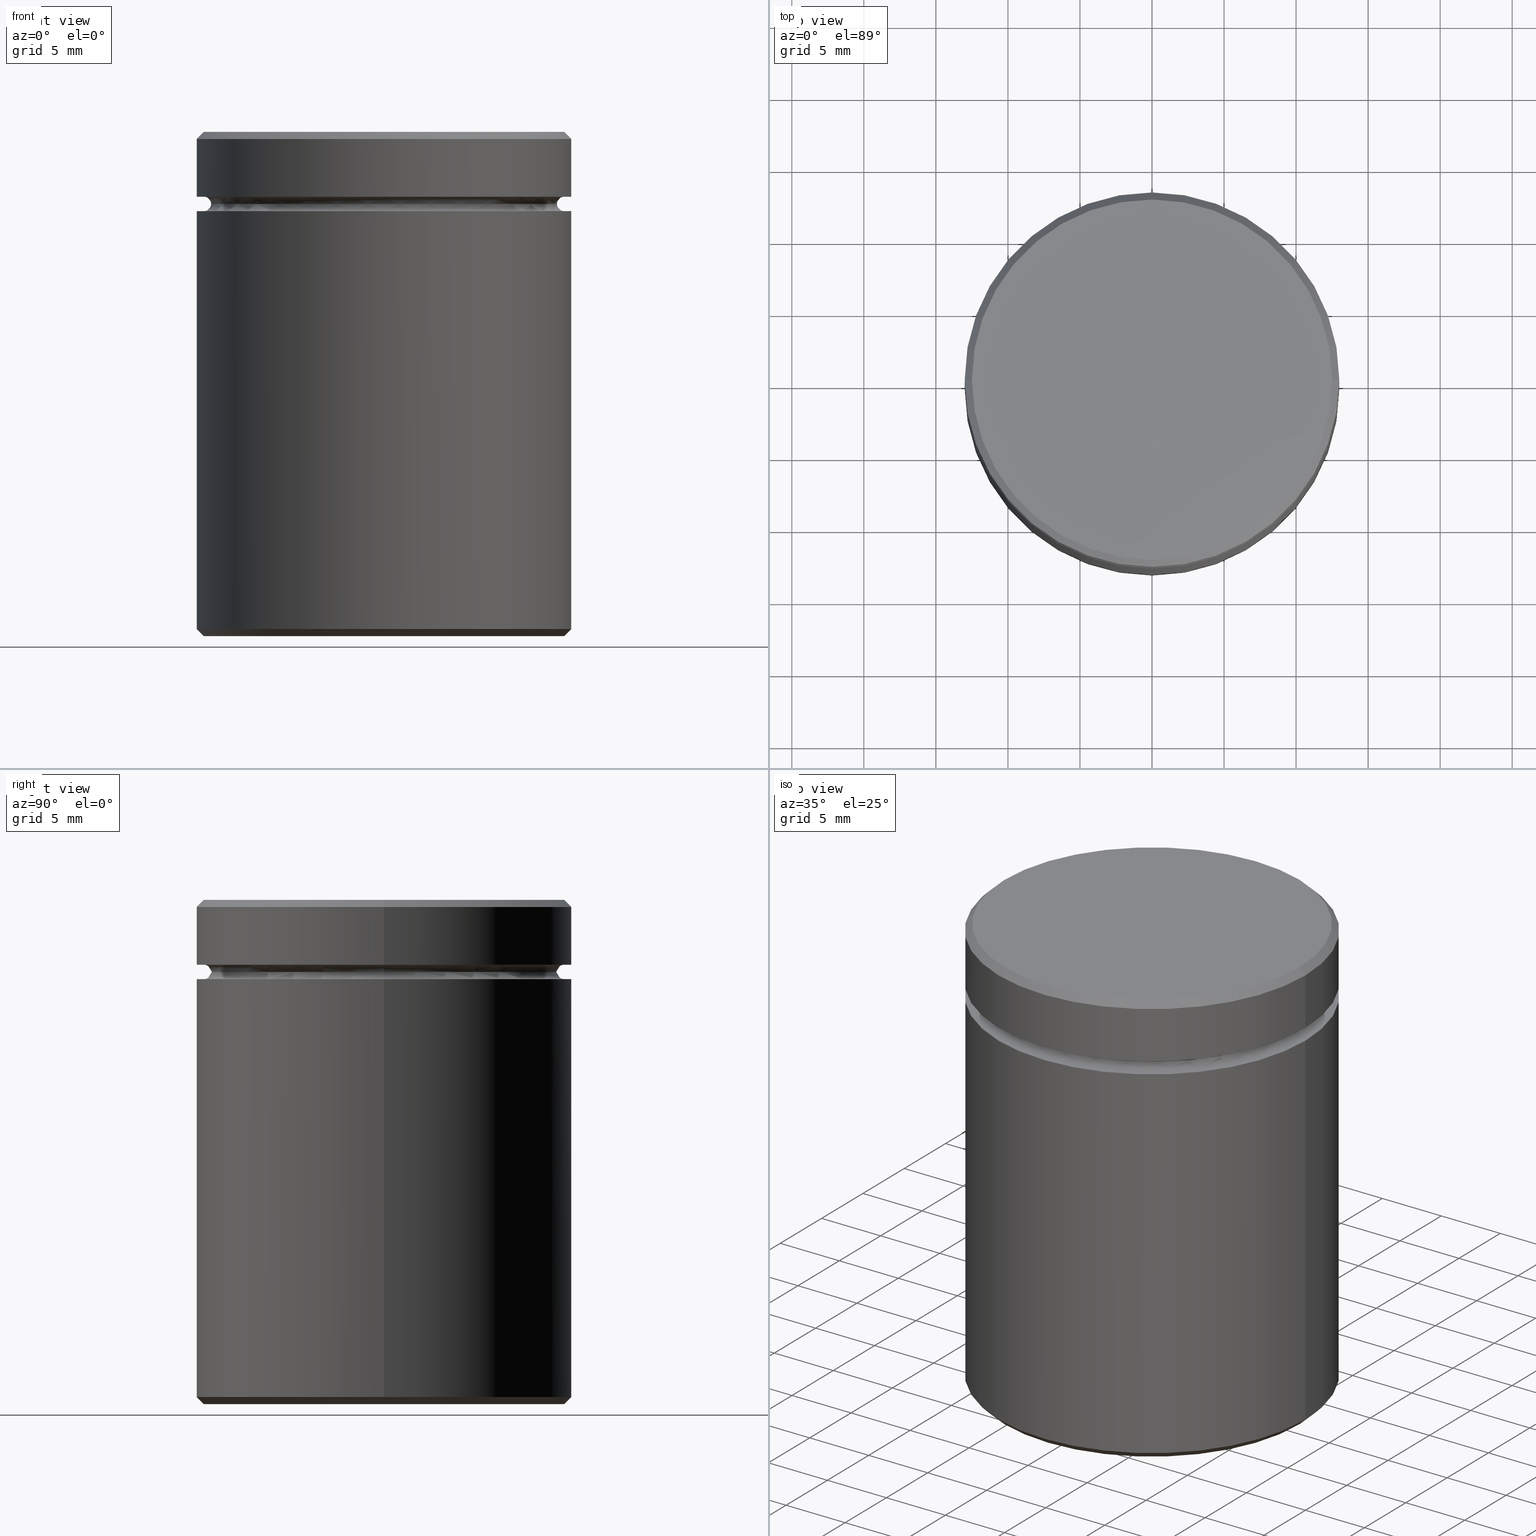
[diagram: canonical four-view strip — front | top / right | iso, engineering-drawing reading convention]
A machine part, canonical four-view strip (front | top / right | iso — engineering-drawing reading convention). The complete STEP part file that produces these views, byte-faithful:
ISO-10303-21;
HEADER;
FILE_DESCRIPTION (( 'STEP AP203' ),
    '1' );
FILE_NAME ('0728.STEP',
    '2024-01-02T19:37:23',
    ( '' ),
    ( '' ),
    'SwSTEP 2.0',
    'SolidWorks 2019',
    '' );
FILE_SCHEMA (( 'CONFIG_CONTROL_DESIGN' ));
ENDSEC;

DATA;
#1 = LINE ( 'NONE', #481, #518 ) ;
#2 = APPROVAL_ROLE ( '' ) ;
#3 = ORIENTED_EDGE ( 'NONE', *, *, #377, .T. ) ;
#4 = DIRECTION ( 'NONE',  ( -0.000000000000000000, -0.000000000000000000, 1.000000000000000000 ) ) ;
#5 = VECTOR ( 'NONE', #11, 1000.000000000000000 ) ;
#6 = LOCAL_TIME ( 20, 37, 23.00000000000000000, #166 ) ;
#7 = CARTESIAN_POINT ( 'NONE',  ( 0.000000000000000000, 0.000000000000000000, -4.500000000000000888 ) ) ;
#8 = CC_DESIGN_DATE_AND_TIME_ASSIGNMENT ( #517, #389, ( #169 ) ) ;
#9 = DIRECTION ( 'NONE',  ( 1.000000000000000000, 0.000000000000000000, 0.000000000000000000 ) ) ;
#10 = VERTEX_POINT ( 'NONE', #47 ) ;
#11 = DIRECTION ( 'NONE',  ( -0.000000000000000000, -0.000000000000000000, -1.000000000000000000 ) ) ;
#12 = DIRECTION ( 'NONE',  ( -0.000000000000000000, -0.000000000000000000, 1.000000000000000000 ) ) ;
#13 = CARTESIAN_POINT ( 'NONE',  ( 8.000000000000000000, 9.797174393178825657E-16, -16.00000000000000355 ) ) ;
#14 = DIRECTION ( 'NONE',  ( -0.000000000000000000, -0.000000000000000000, 1.000000000000000000 ) ) ;
#15 = DIRECTION ( 'NONE',  ( 1.000000000000000000, 0.000000000000000000, 0.000000000000000000 ) ) ;
#16 = CARTESIAN_POINT ( 'NONE',  ( -12.49999999999999112, 0.000000000000000000, 0.000000000000000000 ) ) ;
#17 = TOROIDAL_SURFACE ( 'NONE', #332, 12.50000000000000000, 0.5000000000000000000 ) ;
#18 = VERTEX_POINT ( 'NONE', #179 ) ;
#19 = CC_DESIGN_APPROVAL ( #557, ( #328 ) ) ;
#20 = ORIENTED_EDGE ( 'NONE', *, *, #510, .T. ) ;
#21 = DIRECTION ( 'NONE',  ( -1.000000000000000000, 0.000000000000000000, 0.000000000000000000 ) ) ;
#22 = EDGE_LOOP ( 'NONE', ( #276, #222, #307, #68 ) ) ;
#23 = ADVANCED_FACE ( 'NONE', ( #187 ), #553, .F. ) ;
#24 = CARTESIAN_POINT ( 'NONE',  ( 0.000000000000000000, 0.000000000000000000, -35.00000000000000000 ) ) ;
#25 = ORIENTED_EDGE ( 'NONE', *, *, #86, .T. ) ;
#26 = CIRCLE ( 'NONE', #327, 0.5000000000000004441 ) ;
#27 = CARTESIAN_POINT ( 'NONE',  ( 12.50000000000000000, 0.000000000000000000, -4.999999999999999112 ) ) ;
#28 = CARTESIAN_POINT ( 'NONE',  ( -13.00000000000000000, 1.592040838891559095E-15, 0.000000000000000000 ) ) ;
#29 = CARTESIAN_POINT ( 'NONE',  ( 0.000000000000000000, 0.000000000000000000, -5.500000000000000000 ) ) ;
#30 = CYLINDRICAL_SURFACE ( 'NONE', #281, 13.00000000000000000 ) ;
#31 = CARTESIAN_POINT ( 'NONE',  ( 0.000000000000000000, 0.000000000000000000, -0.5000000000000073275 ) ) ;
#32 = EDGE_CURVE ( 'NONE', #457, #108, #316, .T. ) ;
#33 = PRODUCT_RELATED_PRODUCT_CATEGORY ( 'detail', '', ( #244 ) ) ;
#34 = CIRCLE ( 'NONE', #258, 12.49999999999999112 ) ;
#35 = CARTESIAN_POINT ( 'NONE',  ( 13.00000000000000000, 0.000000000000000000, -5.500000000000000000 ) ) ;
#36 = DIRECTION ( 'NONE',  ( 1.000000000000000000, 0.000000000000000000, 0.000000000000000000 ) ) ;
#37 = ORIENTED_EDGE ( 'NONE', *, *, #216, .F. ) ;
#38 = DIRECTION ( 'NONE',  ( 1.000000000000000000, 0.000000000000000000, 0.000000000000000000 ) ) ;
#39 = CIRCLE ( 'NONE', #266, 13.00000000000000000 ) ;
#40 = CIRCLE ( 'NONE', #504, 8.000000000000000000 ) ;
#41 = ORIENTED_EDGE ( 'NONE', *, *, #312, .T. ) ;
#42 = DATE_TIME_ROLE ( 'classification_date' ) ;
#43 = FACE_OUTER_BOUND ( 'NONE', #443, .T. ) ;
#44 = PERSON_AND_ORGANIZATION_ROLE ( 'creator' ) ;
#45 = ORIENTED_EDGE ( 'NONE', *, *, #61, .T. ) ;
#46 = CARTESIAN_POINT ( 'NONE',  ( 0.000000000000000000, 0.000000000000000000, -34.49999999999999289 ) ) ;
#47 = CARTESIAN_POINT ( 'NONE',  ( 8.000000000000000000, 9.797174393178825657E-16, -35.00000000000000000 ) ) ;
#48 = EDGE_CURVE ( 'NONE', #435, #566, #424, .T. ) ;
#49 = APPROVAL_STATUS ( 'not_yet_approved' ) ;
#50 = ORIENTED_EDGE ( 'NONE', *, *, #333, .F. ) ;
#51 = EDGE_CURVE ( 'NONE', #133, #224, #59, .T. ) ;
#52 = PLANE ( 'NONE',  #110 ) ;
#53 = FACE_OUTER_BOUND ( 'NONE', #255, .T. ) ;
#54 = CARTESIAN_POINT ( 'NONE',  ( 0.000000000000000000, 0.000000000000000000, -4.999999999999999112 ) ) ;
#55 = AXIS2_PLACEMENT_3D ( 'NONE', #7, #303, #314 ) ;
#56 = DATE_AND_TIME ( #184, #147 ) ;
#57 = SECURITY_CLASSIFICATION ( '', '', #97 ) ;
#58 = ORIENTED_EDGE ( 'NONE', *, *, #143, .T. ) ;
#59 = LINE ( 'NONE', #142, #306 ) ;
#60 = ORIENTED_EDGE ( 'NONE', *, *, #421, .F. ) ;
#61 = EDGE_CURVE ( 'NONE', #536, #295, #415, .T. ) ;
#62 = VERTEX_POINT ( 'NONE', #516 ) ;
#63 = CC_DESIGN_DATE_AND_TIME_ASSIGNMENT ( #433, #42, ( #57 ) ) ;
#64 = LINE ( 'NONE', #188, #432 ) ;
#65 = DIRECTION ( 'NONE',  ( 0.000000000000000000, 0.000000000000000000, -1.000000000000000000 ) ) ;
#66 = AXIS2_PLACEMENT_3D ( 'NONE', #242, #317, #545 ) ;
#67 = AXIS2_PLACEMENT_3D ( 'NONE', #347, #366, #505 ) ;
#68 = ORIENTED_EDGE ( 'NONE', *, *, #342, .F. ) ;
#69 = ORIENTED_EDGE ( 'NONE', *, *, #48, .F. ) ;
#70 = CARTESIAN_POINT ( 'NONE',  ( 0.000000000000000000, 0.000000000000000000, -16.00000000000000355 ) ) ;
#71 = DIRECTION ( 'NONE',  ( -1.000000000000000000, 0.000000000000000000, 0.000000000000000000 ) ) ;
#72 = ADVANCED_FACE ( 'NONE', ( #478, #260 ), #513, .T. ) ;
#73 = DIRECTION ( 'NONE',  ( 1.000000000000000000, 0.000000000000000000, 0.000000000000000000 ) ) ;
#74 = ADVANCED_FACE ( 'NONE', ( #228 ), #87, .T. ) ;
#75 = DIRECTION ( 'NONE',  ( 0.000000000000000000, 0.000000000000000000, -1.000000000000000000 ) ) ;
#76 = AXIS2_PLACEMENT_3D ( 'NONE', #24, #149, #21 ) ;
#77 = APPROVAL_PERSON_ORGANIZATION ( #357, #557, #2 ) ;
#78 = DIRECTION ( 'NONE',  ( -0.000000000000000000, -0.000000000000000000, 1.000000000000000000 ) ) ;
#79 = ADVANCED_FACE ( 'NONE', ( #115 ), #360, .T. ) ;
#80 = DIRECTION ( 'NONE',  ( 0.000000000000000000, 0.000000000000000000, -1.000000000000000000 ) ) ;
#81 = PERSON_AND_ORGANIZATION ( #485, #217 ) ;
#82 = VECTOR ( 'NONE', #410, 1000.000000000000000 ) ;
#83 = LOCAL_TIME ( 20, 37, 23.00000000000000000, #223 ) ;
#84 = COORDINATED_UNIVERSAL_TIME_OFFSET ( 1, 0, .AHEAD. ) ;
#85 = APPROVAL ( #49, 'NEUR�EN�' ) ;
#86 = EDGE_CURVE ( 'NONE', #172, #133, #379, .T. ) ;
#87 = CYLINDRICAL_SURFACE ( 'NONE', #178, 13.00000000000000000 ) ;
#88 = SHAPE_DEFINITION_REPRESENTATION ( #494, #382 ) ;
#89 = ORIENTED_EDGE ( 'NONE', *, *, #235, .T. ) ;
#90 = CIRCLE ( 'NONE', #409, 12.49999999999999112 ) ;
#91 = CIRCLE ( 'NONE', #436, 13.00000000000000000 ) ;
#92 = ORIENTED_EDGE ( 'NONE', *, *, #401, .T. ) ;
#93 = ORIENTED_EDGE ( 'NONE', *, *, #438, .F. ) ;
#94 = EDGE_LOOP ( 'NONE', ( #89, #439 ) ) ;
#95 = CARTESIAN_POINT ( 'NONE',  ( 0.000000000000000000, 0.000000000000000000, 0.000000000000000000 ) ) ;
#96 = DIRECTION ( 'NONE',  ( -1.000000000000000000, 0.000000000000000000, 0.000000000000000000 ) ) ;
#97 = SECURITY_CLASSIFICATION_LEVEL ( 'unclassified' ) ;
#98 = ORIENTED_EDGE ( 'NONE', *, *, #479, .F. ) ;
#99 = DIRECTION ( 'NONE',  ( -1.000000000000000000, 0.000000000000000000, 0.000000000000000000 ) ) ;
#100 = VECTOR ( 'NONE', #407, 1000.000000000000000 ) ;
#101 = DIRECTION ( 'NONE',  ( -1.000000000000000000, 0.000000000000000000, 0.000000000000000000 ) ) ;
#102 = CC_DESIGN_SECURITY_CLASSIFICATION ( #57, ( #328 ) ) ;
#103 = EDGE_LOOP ( 'NONE', ( #313, #400, #372, #349 ) ) ;
#104 = DIRECTION ( 'NONE',  ( -0.000000000000000000, -0.000000000000000000, 1.000000000000000000 ) ) ;
#105 = CYLINDRICAL_SURFACE ( 'NONE', #426, 13.00000000000000000 ) ;
#106 = CARTESIAN_POINT ( 'NONE',  ( 12.50000000000000000, 0.000000000000000000, -5.500000000000000000 ) ) ;
#107 = CARTESIAN_POINT ( 'NONE',  ( 13.00000000000000000, 0.000000000000000000, -0.5000000000000073275 ) ) ;
#108 = VERTEX_POINT ( 'NONE', #403 ) ;
#109 = DIRECTION ( 'NONE',  ( -0.000000000000000000, -0.000000000000000000, 1.000000000000000000 ) ) ;
#110 = AXIS2_PLACEMENT_3D ( 'NONE', #183, #315, #395 ) ;
#111 = ORIENTED_EDGE ( 'NONE', *, *, #167, .F. ) ;
#112 = DIRECTION ( 'NONE',  ( 0.000000000000000000, 0.000000000000000000, -1.000000000000000000 ) ) ;
#113 = ADVANCED_FACE ( 'NONE', ( #199 ), #201, .F. ) ;
#114 = LINE ( 'NONE', #16, #386 ) ;
#115 = FACE_OUTER_BOUND ( 'NONE', #301, .T. ) ;
#116 = DIRECTION ( 'NONE',  ( -0.7071067811865487940, 8.659560562354950115E-17, 0.7071067811865463515 ) ) ;
#117 = ORIENTED_EDGE ( 'NONE', *, *, #257, .T. ) ;
#118 = CARTESIAN_POINT ( 'NONE',  ( 12.49999999999999112, 1.530808498934190141E-15, 0.000000000000000000 ) ) ;
#119 = DIRECTION ( 'NONE',  ( -0.000000000000000000, -1.000000000000000000, -0.000000000000000000 ) ) ;
#120 = APPLICATION_CONTEXT ( 'configuration controlled 3d designs of mechanical parts and assemblies' ) ;
#121 = APPROVAL_STATUS ( 'not_yet_approved' ) ;
#122 = CIRCLE ( 'NONE', #550, 8.000000000000000000 ) ;
#123 = APPROVAL ( #121, 'NEUR�EN�' ) ;
#124 = AXIS2_PLACEMENT_3D ( 'NONE', #289, #192, #152 ) ;
#125 = APPLICATION_PROTOCOL_DEFINITION ( 'international standard', 'config_control_design', 1994, #148 ) ;
#126 = FACE_OUTER_BOUND ( 'NONE', #128, .T. ) ;
#127 = APPROVAL_ROLE ( '' ) ;
#128 = EDGE_LOOP ( 'NONE', ( #190, #117, #399, #50 ) ) ;
#129 = VECTOR ( 'NONE', #14, 1000.000000000000000 ) ;
#130 =( NAMED_UNIT ( * ) PLANE_ANGLE_UNIT ( ) SI_UNIT ( $, .RADIAN. ) );
#131 = UNCERTAINTY_MEASURE_WITH_UNIT (LENGTH_MEASURE( 1.000000000000000082E-05 ), #480, 'distance_accuracy_value', 'NONE');
#132 = CARTESIAN_POINT ( 'NONE',  ( 0.000000000000000000, 0.000000000000000000, -0.5000000000000073275 ) ) ;
#133 = VERTEX_POINT ( 'NONE', #213 ) ;
#134 = CARTESIAN_POINT ( 'NONE',  ( -8.000000000000000000, 0.000000000000000000, -35.00000000000000000 ) ) ;
#135 = CALENDAR_DATE ( 2024, 2, 1 ) ;
#136 = EDGE_CURVE ( 'NONE', #295, #196, #394, .T. ) ;
#137 = CARTESIAN_POINT ( 'NONE',  ( 0.000000000000000000, 0.000000000000000000, 0.000000000000000000 ) ) ;
#138 = CIRCLE ( 'NONE', #484, 12.00000000000000000 ) ;
#139 = ORIENTED_EDGE ( 'NONE', *, *, #361, .F. ) ;
#140 = DIRECTION ( 'NONE',  ( 1.000000000000000000, 0.000000000000000000, 0.000000000000000000 ) ) ;
#141 = EDGE_LOOP ( 'NONE', ( #526, #58 ) ) ;
#142 = CARTESIAN_POINT ( 'NONE',  ( -13.00000000000000000, 1.592040838891559095E-15, -34.49999999999999289 ) ) ;
#143 = EDGE_CURVE ( 'NONE', #241, #482, #512, .T. ) ;
#144 = EDGE_CURVE ( 'NONE', #18, #224, #502, .T. ) ;
#145 = VECTOR ( 'NONE', #249, 1000.000000000000000 ) ;
#146 = ADVANCED_FACE ( 'NONE', ( #53 ), #355, .F. ) ;
#147 = LOCAL_TIME ( 20, 37, 23.00000000000000000, #269 ) ;
#148 = APPLICATION_CONTEXT ( 'configuration controlled 3d designs of mechanical parts and assemblies' ) ;
#149 = DIRECTION ( 'NONE',  ( 0.000000000000000000, 0.000000000000000000, -1.000000000000000000 ) ) ;
#150 = DIRECTION ( 'NONE',  ( -1.000000000000000000, 0.000000000000000000, 0.000000000000000000 ) ) ;
#151 = CARTESIAN_POINT ( 'NONE',  ( 0.000000000000000000, 13.00000000000000000, -4.500000000000000888 ) ) ;
#152 = DIRECTION ( 'NONE',  ( -1.000000000000000000, 0.000000000000000000, 0.000000000000000000 ) ) ;
#153 = DIRECTION ( 'NONE',  ( -0.000000000000000000, -0.000000000000000000, 1.000000000000000000 ) ) ;
#154 = DIRECTION ( 'NONE',  ( 1.000000000000000000, 0.000000000000000000, 0.000000000000000000 ) ) ;
#155 = ADVANCED_FACE ( 'NONE', ( #493 ), #539, .F. ) ;
#156 = CC_DESIGN_PERSON_AND_ORGANIZATION_ASSIGNMENT ( #174, #398, ( #57 ) ) ;
#157 = LINE ( 'NONE', #329, #82 ) ;
#158 = CIRCLE ( 'NONE', #387, 8.000000000000000000 ) ;
#159 = VERTEX_POINT ( 'NONE', #292 ) ;
#160 = DIRECTION ( 'NONE',  ( -0.000000000000000000, -0.000000000000000000, 1.000000000000000000 ) ) ;
#161 = DIRECTION ( 'NONE',  ( -1.000000000000000000, 0.000000000000000000, 0.000000000000000000 ) ) ;
#162 = DIRECTION ( 'NONE',  ( -1.000000000000000000, 0.000000000000000000, 0.000000000000000000 ) ) ;
#163 = APPLICATION_PROTOCOL_DEFINITION ( 'international standard', 'config_control_design', 1994, #120 ) ;
#164 = CARTESIAN_POINT ( 'NONE',  ( -13.00000000000000000, 1.592040838891559095E-15, -5.500000000000000000 ) ) ;
#165 = ORIENTED_EDGE ( 'NONE', *, *, #524, .F. ) ;
#166 = COORDINATED_UNIVERSAL_TIME_OFFSET ( 1, 0, .AHEAD. ) ;
#167 = EDGE_CURVE ( 'NONE', #62, #537, #308, .T. ) ;
#168 = CALENDAR_DATE ( 2024, 2, 1 ) ;
#169 = PRODUCT_DEFINITION ( 'NEZN�M�', '', #328, #437 ) ;
#170 = VECTOR ( 'NONE', #300, 1000.000000000000000 ) ;
#171 = DIRECTION ( 'NONE',  ( -1.000000000000000000, 0.000000000000000000, 0.000000000000000000 ) ) ;
#172 = VERTEX_POINT ( 'NONE', #402 ) ;
#173 = VERTEX_POINT ( 'NONE', #320 ) ;
#174 = PERSON_AND_ORGANIZATION ( #485, #217 ) ;
#175 = ORIENTED_EDGE ( 'NONE', *, *, #542, .T. ) ;
#176 = ORIENTED_EDGE ( 'NONE', *, *, #489, .F. ) ;
#177 = EDGE_LOOP ( 'NONE', ( #346, #256, #274, #111 ) ) ;
#178 = AXIS2_PLACEMENT_3D ( 'NONE', #137, #160, #369 ) ;
#179 = CARTESIAN_POINT ( 'NONE',  ( 13.00000000000000000, 0.000000000000000000, -34.49999999999999289 ) ) ;
#180 = AXIS2_PLACEMENT_3D ( 'NONE', #558, #337, #506 ) ;
#181 = PERSON_AND_ORGANIZATION_ROLE ( 'design_supplier' ) ;
#182 = ORIENTED_EDGE ( 'NONE', *, *, #411, .F. ) ;
#183 = CARTESIAN_POINT ( 'NONE',  ( 0.000000000000000000, 13.00000000000000000, -35.00000000000000000 ) ) ;
#184 = CALENDAR_DATE ( 2024, 2, 1 ) ;
#185 = EDGE_LOOP ( 'NONE', ( #25, #560 ) ) ;
#186 = LINE ( 'NONE', #455, #129 ) ;
#187 = FACE_OUTER_BOUND ( 'NONE', #211, .T. ) ;
#188 = CARTESIAN_POINT ( 'NONE',  ( 13.00000000000000000, 0.000000000000000000, 0.000000000000000000 ) ) ;
#189 = AXIS2_PLACEMENT_3D ( 'NONE', #544, #291, #154 ) ;
#190 = ORIENTED_EDGE ( 'NONE', *, *, #144, .T. ) ;
#191 = FACE_BOUND ( 'NONE', #94, .T. ) ;
#192 = DIRECTION ( 'NONE',  ( -0.000000000000000000, -0.000000000000000000, 1.000000000000000000 ) ) ;
#193 = FACE_OUTER_BOUND ( 'NONE', #533, .T. ) ;
#194 = VERTEX_POINT ( 'NONE', #13 ) ;
#195 = ORIENTED_EDGE ( 'NONE', *, *, #342, .T. ) ;
#196 = VERTEX_POINT ( 'NONE', #286 ) ;
#197 = AXIS2_PLACEMENT_3D ( 'NONE', #243, #75, #546 ) ;
#198 = EDGE_LOOP ( 'NONE', ( #225, #219, #567, #270 ) ) ;
#199 = FACE_OUTER_BOUND ( 'NONE', #262, .T. ) ;
#200 = CARTESIAN_POINT ( 'NONE',  ( 12.00000000000000000, 0.000000000000000000, -4.999999999999999112 ) ) ;
#201 = CYLINDRICAL_SURFACE ( 'NONE', #476, 8.000000000000000000 ) ;
#202 = DIRECTION ( 'NONE',  ( 1.000000000000000000, 0.000000000000000000, 0.000000000000000000 ) ) ;
#203 = AXIS2_PLACEMENT_3D ( 'NONE', #309, #488, #353 ) ;
#204 = CARTESIAN_POINT ( 'NONE',  ( 0.000000000000000000, 0.000000000000000000, 0.000000000000000000 ) ) ;
#205 = AXIS2_PLACEMENT_3D ( 'NONE', #498, #153, #507 ) ;
#206 = APPROVAL_PERSON_ORGANIZATION ( #305, #85, #535 ) ;
#207 = ORIENTED_EDGE ( 'NONE', *, *, #333, .T. ) ;
#208 = CARTESIAN_POINT ( 'NONE',  ( 0.000000000000000000, 0.000000000000000000, -5.500000000000000000 ) ) ;
#209 = CARTESIAN_POINT ( 'NONE',  ( 0.000000000000000000, 0.000000000000000000, 0.000000000000000000 ) ) ;
#210 = EDGE_CURVE ( 'NONE', #536, #173, #34, .T. ) ;
#211 = EDGE_LOOP ( 'NONE', ( #165, #69, #441, #325 ) ) ;
#212 = PERSON_AND_ORGANIZATION ( #485, #217 ) ;
#213 = CARTESIAN_POINT ( 'NONE',  ( -12.49999999999999112, 1.561424668912874519E-15, -35.00000000000000000 ) ) ;
#214 = CIRCLE ( 'NONE', #76, 8.000000000000000000 ) ;
#215 = DIRECTION ( 'NONE',  ( -0.000000000000000000, -0.000000000000000000, 1.000000000000000000 ) ) ;
#216 = EDGE_CURVE ( 'NONE', #390, #530, #425, .T. ) ;
#217 = ORGANIZATION ( 'NEUR�EN�', 'NEUR�EN�', '' ) ;
#218 = CC_DESIGN_PERSON_AND_ORGANIZATION_ASSIGNMENT ( #212, #423, ( #169 ) ) ;
#219 = ORIENTED_EDGE ( 'NONE', *, *, #524, .T. ) ;
#220 = CARTESIAN_POINT ( 'NONE',  ( 0.000000000000000000, 0.000000000000000000, -5.500000000000000000 ) ) ;
#221 = DIRECTION ( 'NONE',  ( -0.000000000000000000, -0.000000000000000000, 1.000000000000000000 ) ) ;
#222 = ORIENTED_EDGE ( 'NONE', *, *, #411, .T. ) ;
#223 = COORDINATED_UNIVERSAL_TIME_OFFSET ( 1, 0, .AHEAD. ) ;
#224 = VERTEX_POINT ( 'NONE', #388 ) ;
#225 = ORIENTED_EDGE ( 'NONE', *, *, #472, .F. ) ;
#226 = DIRECTION ( 'NONE',  ( -0.000000000000000000, -0.000000000000000000, 1.000000000000000000 ) ) ;
#227 = AXIS2_PLACEMENT_3D ( 'NONE', #499, #65, #237 ) ;
#228 = FACE_OUTER_BOUND ( 'NONE', #451, .T. ) ;
#229 = DIRECTION ( 'NONE',  ( 1.000000000000000000, 0.000000000000000000, 0.000000000000000000 ) ) ;
#230 = FACE_OUTER_BOUND ( 'NONE', #177, .T. ) ;
#231 = ORIENTED_EDGE ( 'NONE', *, *, #51, .T. ) ;
#232 = FACE_BOUND ( 'NONE', #496, .T. ) ;
#233 = VERTEX_POINT ( 'NONE', #134 ) ;
#234 = ORIENTED_EDGE ( 'NONE', *, *, #326, .T. ) ;
#235 = EDGE_CURVE ( 'NONE', #537, #62, #251, .T. ) ;
#236 = AXIS2_PLACEMENT_3D ( 'NONE', #311, #271, #319 ) ;
#237 = DIRECTION ( 'NONE',  ( -1.000000000000000000, 0.000000000000000000, 0.000000000000000000 ) ) ;
#238 = APPROVAL_PERSON_ORGANIZATION ( #331, #123, #127 ) ;
#239 = CC_DESIGN_PERSON_AND_ORGANIZATION_ASSIGNMENT ( #568, #44, ( #328 ) ) ;
#240 = ORIENTED_EDGE ( 'NONE', *, *, #384, .F. ) ;
#241 = VERTEX_POINT ( 'NONE', #267 ) ;
#242 = CARTESIAN_POINT ( 'NONE',  ( 0.000000000000000000, 0.000000000000000000, 0.000000000000000000 ) ) ;
#243 = CARTESIAN_POINT ( 'NONE',  ( 0.000000000000000000, 0.000000000000000000, -16.00000000000000355 ) ) ;
#244 = PRODUCT ( '0728', '0728', '', ( #559 ) ) ;
#245 = CARTESIAN_POINT ( 'NONE',  ( 0.000000000000000000, 0.000000000000000000, -4.999999999999999112 ) ) ;
#246 = DIRECTION ( 'NONE',  ( -0.000000000000000000, -0.000000000000000000, 1.000000000000000000 ) ) ;
#247 = FACE_OUTER_BOUND ( 'NONE', #547, .T. ) ;
#248 = CLOSED_SHELL ( 'NONE', ( #440, #155, #429, #462, #146, #490, #564, #323, #79, #74, #288, #72, #461, #113, #391, #509, #352, #23, #335 ) ) ;
#249 = DIRECTION ( 'NONE',  ( 0.7071067811865487940, 8.659560562354950115E-17, -0.7071067811865463515 ) ) ;
#250 = LINE ( 'NONE', #28, #100 ) ;
#251 = CIRCLE ( 'NONE', #55, 12.50000000000000000 ) ;
#252 = FACE_OUTER_BOUND ( 'NONE', #103, .T. ) ;
#253 = DIRECTION ( 'NONE',  ( 0.000000000000000000, 0.000000000000000000, -1.000000000000000000 ) ) ;
#254 = DIRECTION ( 'NONE',  ( 0.000000000000000000, -1.000000000000000000, 0.000000000000000000 ) ) ;
#255 = EDGE_LOOP ( 'NONE', ( #139, #234, #20, #345 ) ) ;
#256 = ORIENTED_EDGE ( 'NONE', *, *, #48, .T. ) ;
#257 = EDGE_CURVE ( 'NONE', #224, #390, #430, .T. ) ;
#258 = AXIS2_PLACEMENT_3D ( 'NONE', #406, #4, #38 ) ;
#259 =( GEOMETRIC_REPRESENTATION_CONTEXT ( 3 ) GLOBAL_UNCERTAINTY_ASSIGNED_CONTEXT ( ( #131 ) ) GLOBAL_UNIT_ASSIGNED_CONTEXT ( ( #480, #130, #383 ) ) REPRESENTATION_CONTEXT ( 'NONE', 'WORKASPACE' ) );
#260 = FACE_OUTER_BOUND ( 'NONE', #456, .T. ) ;
#261 = CARTESIAN_POINT ( 'NONE',  ( -12.50000000000000000, 0.000000000000000000, -4.500000000000000888 ) ) ;
#262 = EDGE_LOOP ( 'NONE', ( #453, #176, #92, #404 ) ) ;
#263 = DIRECTION ( 'NONE',  ( 0.000000000000000000, 0.000000000000000000, -1.000000000000000000 ) ) ;
#264 = DIRECTION ( 'NONE',  ( 0.7071067811865487940, 0.000000000000000000, 0.7071067811865463515 ) ) ;
#265 = ORIENTED_EDGE ( 'NONE', *, *, #510, .F. ) ;
#266 = AXIS2_PLACEMENT_3D ( 'NONE', #464, #500, #73 ) ;
#267 = CARTESIAN_POINT ( 'NONE',  ( -12.50000000000000000, 1.530808498934191521E-15, -5.500000000000000000 ) ) ;
#268 = DIRECTION ( 'NONE',  ( 1.000000000000000000, 0.000000000000000000, 0.000000000000000000 ) ) ;
#269 = COORDINATED_UNIVERSAL_TIME_OFFSET ( 1, 0, .AHEAD. ) ;
#270 = ORIENTED_EDGE ( 'NONE', *, *, #373, .F. ) ;
#271 = DIRECTION ( 'NONE',  ( -0.000000000000000000, -0.000000000000000000, 1.000000000000000000 ) ) ;
#272 = APPROVAL_DATE_TIME ( #348, #85 ) ;
#273 = FACE_OUTER_BOUND ( 'NONE', #185, .T. ) ;
#274 = ORIENTED_EDGE ( 'NONE', *, *, #384, .T. ) ;
#275 = CARTESIAN_POINT ( 'NONE',  ( 0.000000000000000000, 0.000000000000000000, 0.000000000000000000 ) ) ;
#276 = ORIENTED_EDGE ( 'NONE', *, *, #32, .T. ) ;
#277 = EDGE_CURVE ( 'NONE', #172, #18, #1, .T. ) ;
#278 = DIRECTION ( 'NONE',  ( -1.000000000000000000, 0.000000000000000000, 0.000000000000000000 ) ) ;
#279 = DIRECTION ( 'NONE',  ( 0.000000000000000000, -0.000000000000000000, 1.000000000000000000 ) ) ;
#280 = TOROIDAL_SURFACE ( 'NONE', #227, 12.50000000000000000, 0.5000000000000000000 ) ;
#281 = AXIS2_PLACEMENT_3D ( 'NONE', #339, #78, #418 ) ;
#282 = ORIENTED_EDGE ( 'NONE', *, *, #489, .T. ) ;
#283 = CARTESIAN_POINT ( 'NONE',  ( 0.000000000000000000, 0.000000000000000000, -4.999999999999999112 ) ) ;
#284 = DIRECTION ( 'NONE',  ( -0.000000000000000000, -0.000000000000000000, 1.000000000000000000 ) ) ;
#285 = CARTESIAN_POINT ( 'NONE',  ( 0.000000000000000000, 0.000000000000000000, -16.00000000000000355 ) ) ;
#286 = CARTESIAN_POINT ( 'NONE',  ( -13.00000000000000000, 1.592040838891559095E-15, -0.5000000000000073275 ) ) ;
#287 = CARTESIAN_POINT ( 'NONE',  ( 0.000000000000000000, 0.000000000000000000, -5.000000000000000888 ) ) ;
#288 = ADVANCED_FACE ( 'NONE', ( #191, #363 ), #548, .T. ) ;
#289 = CARTESIAN_POINT ( 'NONE',  ( 0.000000000000000000, 0.000000000000000000, -34.49999999999999289 ) ) ;
#290 = AXIS2_PLACEMENT_3D ( 'NONE', #204, #381, #427 ) ;
#291 = DIRECTION ( 'NONE',  ( -0.000000000000000000, -0.000000000000000000, 1.000000000000000000 ) ) ;
#292 = CARTESIAN_POINT ( 'NONE',  ( -8.000000000000000000, 0.000000000000000000, -16.00000000000000355 ) ) ;
#293 = AXIS2_PLACEMENT_3D ( 'NONE', #151, #368, #497 ) ;
#294 = CALENDAR_DATE ( 2024, 2, 1 ) ;
#295 = VERTEX_POINT ( 'NONE', #107 ) ;
#296 = DIRECTION ( 'NONE',  ( 0.000000000000000000, 0.000000000000000000, -1.000000000000000000 ) ) ;
#297 = CC_DESIGN_PERSON_AND_ORGANIZATION_ASSIGNMENT ( #302, #181, ( #328 ) ) ;
#298 = APPROVAL_DATE_TIME ( #515, #123 ) ;
#299 = AXIS2_PLACEMENT_3D ( 'NONE', #220, #215, #532 ) ;
#300 = DIRECTION ( 'NONE',  ( -0.000000000000000000, -0.000000000000000000, 1.000000000000000000 ) ) ;
#301 = EDGE_LOOP ( 'NONE', ( #41, #473 ) ) ;
#302 = PERSON_AND_ORGANIZATION ( #485, #217 ) ;
#303 = DIRECTION ( 'NONE',  ( -0.000000000000000000, -0.000000000000000000, 1.000000000000000000 ) ) ;
#304 = FACE_OUTER_BOUND ( 'NONE', #549, .T. ) ;
#305 = PERSON_AND_ORGANIZATION ( #485, #217 ) ;
#306 = VECTOR ( 'NONE', #116, 1000.000000000000000 ) ;
#307 = ORIENTED_EDGE ( 'NONE', *, *, #378, .T. ) ;
#308 = CIRCLE ( 'NONE', #477, 12.50000000000000000 ) ;
#309 = CARTESIAN_POINT ( 'NONE',  ( 0.000000000000000000, 0.000000000000000000, -4.500000000000000888 ) ) ;
#310 = ORIENTED_EDGE ( 'NONE', *, *, #136, .T. ) ;
#311 = CARTESIAN_POINT ( 'NONE',  ( 0.000000000000000000, 0.000000000000000000, 0.000000000000000000 ) ) ;
#312 = EDGE_CURVE ( 'NONE', #173, #536, #491, .T. ) ;
#313 = ORIENTED_EDGE ( 'NONE', *, *, #61, .F. ) ;
#314 = DIRECTION ( 'NONE',  ( -1.000000000000000000, 0.000000000000000000, 0.000000000000000000 ) ) ;
#315 = DIRECTION ( 'NONE',  ( 0.000000000000000000, 0.000000000000000000, -1.000000000000000000 ) ) ;
#316 = CIRCLE ( 'NONE', #203, 13.00000000000000000 ) ;
#317 = DIRECTION ( 'NONE',  ( 0.000000000000000000, -0.000000000000000000, 1.000000000000000000 ) ) ;
#318 = AXIS2_PLACEMENT_3D ( 'NONE', #31, #465, #202 ) ;
#319 = DIRECTION ( 'NONE',  ( 1.000000000000000000, 0.000000000000000000, 0.000000000000000000 ) ) ;
#320 = CARTESIAN_POINT ( 'NONE',  ( -12.49999999999999112, 0.000000000000000000, 0.000000000000000000 ) ) ;
#321 = AXIS2_PLACEMENT_3D ( 'NONE', #29, #296, #376 ) ;
#322 = FACE_OUTER_BOUND ( 'NONE', #324, .T. ) ;
#323 = ADVANCED_FACE ( 'NONE', ( #273, #232 ), #52, .T. ) ;
#324 = EDGE_LOOP ( 'NONE', ( #569, #3, #446, #240 ) ) ;
#325 = ORIENTED_EDGE ( 'NONE', *, *, #143, .F. ) ;
#326 = EDGE_CURVE ( 'NONE', #194, #10, #354, .T. ) ;
#327 = AXIS2_PLACEMENT_3D ( 'NONE', #27, #254, #80 ) ;
#328 = PRODUCT_DEFINITION_FORMATION_WITH_SPECIFIED_SOURCE ( 'LIBOVOLN�', '', #244, .NOT_KNOWN. ) ;
#329 = CARTESIAN_POINT ( 'NONE',  ( -8.000000000000000000, 0.000000000000000000, -16.00000000000000355 ) ) ;
#330 = CARTESIAN_POINT ( 'NONE',  ( -12.50000000000000000, 0.000000000000000000, -5.000000000000000888 ) ) ;
#331 = PERSON_AND_ORGANIZATION ( #485, #217 ) ;
#332 = AXIS2_PLACEMENT_3D ( 'NONE', #287, #463, #278 ) ;
#333 = EDGE_CURVE ( 'NONE', #18, #530, #186, .T. ) ;
#334 = CARTESIAN_POINT ( 'NONE',  ( -12.00000000000000000, 1.500192328955507734E-15, -4.999999999999999112 ) ) ;
#335 = ADVANCED_FACE ( 'NONE', ( #230 ), #280, .F. ) ;
#336 = DIRECTION ( 'NONE',  ( 0.000000000000000000, 0.000000000000000000, -1.000000000000000000 ) ) ;
#337 = DIRECTION ( 'NONE',  ( -1.224646799147353207E-16, 1.000000000000000000, 0.000000000000000000 ) ) ;
#338 = CARTESIAN_POINT ( 'NONE',  ( 0.000000000000000000, 0.000000000000000000, -5.500000000000000000 ) ) ;
#339 = CARTESIAN_POINT ( 'NONE',  ( 0.000000000000000000, 0.000000000000000000, 0.000000000000000000 ) ) ;
#340 = CONICAL_SURFACE ( 'NONE', #374, 13.00000000000000000, 0.7853981633974500554 ) ;
#341 = DIRECTION ( 'NONE',  ( -0.000000000000000000, -0.000000000000000000, 1.000000000000000000 ) ) ;
#342 = EDGE_CURVE ( 'NONE', #457, #295, #64, .T. ) ;
#343 = ORIENTED_EDGE ( 'NONE', *, *, #419, .F. ) ;
#344 = APPROVAL_DATE_TIME ( #56, #557 ) ;
#345 = ORIENTED_EDGE ( 'NONE', *, *, #401, .F. ) ;
#346 = ORIENTED_EDGE ( 'NONE', *, *, #377, .F. ) ;
#347 = CARTESIAN_POINT ( 'NONE',  ( 0.000000000000000000, 0.000000000000000000, 0.000000000000000000 ) ) ;
#348 = DATE_AND_TIME ( #483, #83 ) ;
#349 = ORIENTED_EDGE ( 'NONE', *, *, #136, .F. ) ;
#350 = AXIS2_PLACEMENT_3D ( 'NONE', #330, #119, #555 ) ;
#351 = CIRCLE ( 'NONE', #321, 12.50000000000000000 ) ;
#352 = ADVANCED_FACE ( 'NONE', ( #412 ), #340, .T. ) ;
#353 = DIRECTION ( 'NONE',  ( 1.000000000000000000, 0.000000000000000000, 0.000000000000000000 ) ) ;
#354 = LINE ( 'NONE', #359, #5 ) ;
#355 = CYLINDRICAL_SURFACE ( 'NONE', #563, 8.000000000000000000 ) ;
#356 = CARTESIAN_POINT ( 'NONE',  ( 0.000000000000000000, 12.00000000000000000, -5.500000000000000000 ) ) ;
#357 = PERSON_AND_ORGANIZATION ( #485, #217 ) ;
#358 = ORIENTED_EDGE ( 'NONE', *, *, #210, .F. ) ;
#359 = CARTESIAN_POINT ( 'NONE',  ( 8.000000000000000000, 9.797174393178825657E-16, -16.00000000000000355 ) ) ;
#360 = PLANE ( 'NONE',  #66 ) ;
#361 = EDGE_CURVE ( 'NONE', #194, #159, #122, .T. ) ;
#362 = CARTESIAN_POINT ( 'NONE',  ( 0.000000000000000000, 0.000000000000000000, -16.00000000000000355 ) ) ;
#363 = FACE_OUTER_BOUND ( 'NONE', #531, .T. ) ;
#364 = CONICAL_SURFACE ( 'NONE', #189, 13.00000000000000000, 0.7853981633974500554 ) ;
#365 = AXIS2_PLACEMENT_3D ( 'NONE', #46, #221, #96 ) ;
#366 = DIRECTION ( 'NONE',  ( 0.000000000000000000, 0.000000000000000000, -1.000000000000000000 ) ) ;
#367 = LOCAL_TIME ( 20, 37, 23.00000000000000000, #84 ) ;
#368 = DIRECTION ( 'NONE',  ( 0.000000000000000000, 0.000000000000000000, -1.000000000000000000 ) ) ;
#369 = DIRECTION ( 'NONE',  ( 1.000000000000000000, 0.000000000000000000, 0.000000000000000000 ) ) ;
#370 = DIRECTION ( 'NONE',  ( -0.7071067811865487940, 0.000000000000000000, -0.7071067811865463515 ) ) ;
#371 = DIRECTION ( 'NONE',  ( 0.000000000000000000, 0.000000000000000000, -1.000000000000000000 ) ) ;
#372 = ORIENTED_EDGE ( 'NONE', *, *, #421, .T. ) ;
#373 = EDGE_CURVE ( 'NONE', #435, #482, #26, .T. ) ;
#374 = AXIS2_PLACEMENT_3D ( 'NONE', #543, #551, #229 ) ;
#375 = CONICAL_SURFACE ( 'NONE', #470, 12.49999999999999112, 0.7853981633974500554 ) ;
#376 = DIRECTION ( 'NONE',  ( 1.000000000000000000, 0.000000000000000000, 0.000000000000000000 ) ) ;
#377 = EDGE_CURVE ( 'NONE', #435, #62, #528, .T. ) ;
#378 = EDGE_CURVE ( 'NONE', #196, #295, #447, .T. ) ;
#379 = CIRCLE ( 'NONE', #501, 12.49999999999999112 ) ;
#380 = CIRCLE ( 'NONE', #124, 13.00000000000000000 ) ;
#381 = DIRECTION ( 'NONE',  ( 0.000000000000000000, 0.000000000000000000, 1.000000000000000000 ) ) ;
#382 = ADVANCED_BREP_SHAPE_REPRESENTATION ( '0728', ( #514, #290 ), #259 ) ;
#383 =( NAMED_UNIT ( * ) SI_UNIT ( $, .STERADIAN. ) SOLID_ANGLE_UNIT ( ) );
#384 = EDGE_CURVE ( 'NONE', #566, #537, #416, .T. ) ;
#385 = AXIS2_PLACEMENT_3D ( 'NONE', #54, #226, #9 ) ;
#386 = VECTOR ( 'NONE', #370, 1000.000000000000000 ) ;
#387 = AXIS2_PLACEMENT_3D ( 'NONE', #70, #371, #162 ) ;
#388 = CARTESIAN_POINT ( 'NONE',  ( -13.00000000000000000, 1.592040838891559095E-15, -34.49999999999999289 ) ) ;
#389 = DATE_TIME_ROLE ( 'creation_date' ) ;
#390 = VERTEX_POINT ( 'NONE', #164 ) ;
#391 = ADVANCED_FACE ( 'NONE', ( #193 ), #413, .T. ) ;
#392 = ORIENTED_EDGE ( 'NONE', *, *, #277, .T. ) ;
#393 = CARTESIAN_POINT ( 'NONE',  ( 13.00000000000000000, 0.000000000000000000, -4.500000000000000888 ) ) ;
#394 = CIRCLE ( 'NONE', #460, 13.00000000000000000 ) ;
#395 = DIRECTION ( 'NONE',  ( -1.000000000000000000, 0.000000000000000000, -0.000000000000000000 ) ) ;
#396 = AXIS2_PLACEMENT_3D ( 'NONE', #95, #104, #442 ) ;
#397 = ORIENTED_EDGE ( 'NONE', *, *, #277, .F. ) ;
#398 = PERSON_AND_ORGANIZATION_ROLE ( 'classification_officer' ) ;
#399 = ORIENTED_EDGE ( 'NONE', *, *, #542, .F. ) ;
#400 = ORIENTED_EDGE ( 'NONE', *, *, #312, .F. ) ;
#401 = EDGE_CURVE ( 'NONE', #159, #233, #157, .T. ) ;
#402 = CARTESIAN_POINT ( 'NONE',  ( 12.49999999999999112, 0.000000000000000000, -35.00000000000000000 ) ) ;
#403 = CARTESIAN_POINT ( 'NONE',  ( -13.00000000000000000, 1.592040838891559095E-15, -4.500000000000000888 ) ) ;
#404 = ORIENTED_EDGE ( 'NONE', *, *, #419, .T. ) ;
#405 = DIRECTION ( 'NONE',  ( 0.000000000000000000, 0.000000000000000000, -1.000000000000000000 ) ) ;
#406 = CARTESIAN_POINT ( 'NONE',  ( 0.000000000000000000, 0.000000000000000000, 0.000000000000000000 ) ) ;
#407 = DIRECTION ( 'NONE',  ( -0.000000000000000000, -0.000000000000000000, 1.000000000000000000 ) ) ;
#408 = ORIENTED_EDGE ( 'NONE', *, *, #438, .T. ) ;
#409 = AXIS2_PLACEMENT_3D ( 'NONE', #458, #263, #99 ) ;
#410 = DIRECTION ( 'NONE',  ( -0.000000000000000000, -0.000000000000000000, -1.000000000000000000 ) ) ;
#411 = EDGE_CURVE ( 'NONE', #108, #196, #250, .T. ) ;
#412 = FACE_OUTER_BOUND ( 'NONE', #521, .T. ) ;
#413 = PLANE ( 'NONE',  #197 ) ;
#414 = ORIENTED_EDGE ( 'NONE', *, *, #361, .T. ) ;
#415 = LINE ( 'NONE', #118, #145 ) ;
#416 = CIRCLE ( 'NONE', #350, 0.5000000000000004441 ) ;
#417 = CC_DESIGN_APPROVAL ( #123, ( #169 ) ) ;
#418 = DIRECTION ( 'NONE',  ( 1.000000000000000000, 0.000000000000000000, 0.000000000000000000 ) ) ;
#419 = EDGE_CURVE ( 'NONE', #233, #10, #214, .T. ) ;
#420 = FACE_OUTER_BOUND ( 'NONE', #22, .T. ) ;
#421 = EDGE_CURVE ( 'NONE', #173, #196, #114, .T. ) ;
#422 = ORIENTED_EDGE ( 'NONE', *, *, #32, .F. ) ;
#423 = PERSON_AND_ORGANIZATION_ROLE ( 'creator' ) ;
#424 = CIRCLE ( 'NONE', #385, 12.00000000000000000 ) ;
#425 = CIRCLE ( 'NONE', #299, 13.00000000000000000 ) ;
#426 = AXIS2_PLACEMENT_3D ( 'NONE', #275, #341, #508 ) ;
#427 = DIRECTION ( 'NONE',  ( 1.000000000000000000, 0.000000000000000000, 0.000000000000000000 ) ) ;
#428 = DIRECTION ( 'NONE',  ( -1.000000000000000000, 1.224646799147353454E-16, 0.000000000000000000 ) ) ;
#429 = ADVANCED_FACE ( 'NONE', ( #247 ), #364, .T. ) ;
#430 = LINE ( 'NONE', #562, #170 ) ;
#431 = ORIENTED_EDGE ( 'NONE', *, *, #216, .T. ) ;
#432 = VECTOR ( 'NONE', #246, 1000.000000000000000 ) ;
#433 = DATE_AND_TIME ( #135, #449 ) ;
#434 = CC_DESIGN_APPROVAL ( #85, ( #57 ) ) ;
#435 = VERTEX_POINT ( 'NONE', #200 ) ;
#436 = AXIS2_PLACEMENT_3D ( 'NONE', #338, #556, #36 ) ;
#437 = DESIGN_CONTEXT ( 'detailed design', #148, 'design' ) ;
#438 = EDGE_CURVE ( 'NONE', #108, #457, #39, .T. ) ;
#439 = ORIENTED_EDGE ( 'NONE', *, *, #167, .T. ) ;
#440 = ADVANCED_FACE ( 'NONE', ( #322 ), #17, .F. ) ;
#441 = ORIENTED_EDGE ( 'NONE', *, *, #373, .T. ) ;
#442 = DIRECTION ( 'NONE',  ( 1.000000000000000000, 0.000000000000000000, 0.000000000000000000 ) ) ;
#443 = EDGE_LOOP ( 'NONE', ( #520, #444, #207, #37 ) ) ;
#444 = ORIENTED_EDGE ( 'NONE', *, *, #479, .T. ) ;
#445 = DIRECTION ( 'NONE',  ( 1.000000000000000000, 0.000000000000000000, 0.000000000000000000 ) ) ;
#446 = ORIENTED_EDGE ( 'NONE', *, *, #235, .F. ) ;
#447 = CIRCLE ( 'NONE', #318, 13.00000000000000000 ) ;
#448 = ORIENTED_EDGE ( 'NONE', *, *, #86, .F. ) ;
#449 = LOCAL_TIME ( 20, 37, 23.00000000000000000, #522 ) ;
#450 = DIRECTION ( 'NONE',  ( 1.000000000000000000, 0.000000000000000000, 0.000000000000000000 ) ) ;
#451 = EDGE_LOOP ( 'NONE', ( #182, #408, #195, #310 ) ) ;
#452 = CYLINDRICAL_SURFACE ( 'NONE', #236, 13.00000000000000000 ) ;
#453 = ORIENTED_EDGE ( 'NONE', *, *, #326, .F. ) ;
#454 = EDGE_CURVE ( 'NONE', #133, #172, #90, .T. ) ;
#455 = CARTESIAN_POINT ( 'NONE',  ( 13.00000000000000000, 0.000000000000000000, 0.000000000000000000 ) ) ;
#456 = EDGE_LOOP ( 'NONE', ( #175, #431 ) ) ;
#457 = VERTEX_POINT ( 'NONE', #393 ) ;
#458 = CARTESIAN_POINT ( 'NONE',  ( 0.000000000000000000, 0.000000000000000000, -35.00000000000000000 ) ) ;
#459 = ORIENTED_EDGE ( 'NONE', *, *, #144, .F. ) ;
#460 = AXIS2_PLACEMENT_3D ( 'NONE', #132, #523, #268 ) ;
#461 = ADVANCED_FACE ( 'NONE', ( #43 ), #452, .T. ) ;
#462 = ADVANCED_FACE ( 'NONE', ( #304 ), #554, .T. ) ;
#463 = DIRECTION ( 'NONE',  ( 0.000000000000000000, 0.000000000000000000, -1.000000000000000000 ) ) ;
#464 = CARTESIAN_POINT ( 'NONE',  ( 0.000000000000000000, 0.000000000000000000, -4.500000000000000888 ) ) ;
#465 = DIRECTION ( 'NONE',  ( 0.000000000000000000, 0.000000000000000000, -1.000000000000000000 ) ) ;
#466 = CARTESIAN_POINT ( 'NONE',  ( 0.000000000000000000, 0.000000000000000000, -4.500000000000000888 ) ) ;
#467 = CC_DESIGN_PERSON_AND_ORGANIZATION_ASSIGNMENT ( #81, #552, ( #244 ) ) ;
#468 = AXIS2_PLACEMENT_3D ( 'NONE', #356, #279, #450 ) ;
#469 = AXIS2_PLACEMENT_3D ( 'NONE', #208, #487, #140 ) ;
#470 = AXIS2_PLACEMENT_3D ( 'NONE', #209, #336, #161 ) ;
#471 = DIRECTION ( 'NONE',  ( -1.000000000000000000, 0.000000000000000000, 0.000000000000000000 ) ) ;
#472 = EDGE_CURVE ( 'NONE', #566, #435, #138, .T. ) ;
#473 = ORIENTED_EDGE ( 'NONE', *, *, #210, .T. ) ;
#474 = CARTESIAN_POINT ( 'NONE',  ( -12.50000000000000000, 1.530808498934191521E-15, -4.999999999999999112 ) ) ;
#475 = CARTESIAN_POINT ( 'NONE',  ( 0.000000000000000000, 0.000000000000000000, -35.00000000000000000 ) ) ;
#476 = AXIS2_PLACEMENT_3D ( 'NONE', #519, #527, #171 ) ;
#477 = AXIS2_PLACEMENT_3D ( 'NONE', #466, #109, #71 ) ;
#478 = FACE_BOUND ( 'NONE', #141, .T. ) ;
#479 = EDGE_CURVE ( 'NONE', #224, #18, #380, .T. ) ;
#480 =( LENGTH_UNIT ( ) NAMED_UNIT ( * ) SI_UNIT ( .MILLI., .METRE. ) );
#481 = CARTESIAN_POINT ( 'NONE',  ( 13.00000000000000000, 0.000000000000000000, -34.49999999999999289 ) ) ;
#482 = VERTEX_POINT ( 'NONE', #106 ) ;
#483 = CALENDAR_DATE ( 2024, 2, 1 ) ;
#484 = AXIS2_PLACEMENT_3D ( 'NONE', #245, #284, #15 ) ;
#485 = PERSON ( 'NEUR�EN�', 'NEUR�EN�', 'NEUR�EN�', ('NEUR�EN�'), ('NEUR�EN�'), ('NEUR�EN�') ) ;
#486 = ORIENTED_EDGE ( 'NONE', *, *, #378, .F. ) ;
#487 = DIRECTION ( 'NONE',  ( 0.000000000000000000, 0.000000000000000000, -1.000000000000000000 ) ) ;
#488 = DIRECTION ( 'NONE',  ( -0.000000000000000000, -0.000000000000000000, 1.000000000000000000 ) ) ;
#489 = EDGE_CURVE ( 'NONE', #159, #194, #158, .T. ) ;
#490 = ADVANCED_FACE ( 'NONE', ( #126 ), #105, .T. ) ;
#491 = CIRCLE ( 'NONE', #396, 12.49999999999999112 ) ;
#492 = AXIS2_PLACEMENT_3D ( 'NONE', #474, #511, #428 ) ;
#493 = FACE_OUTER_BOUND ( 'NONE', #198, .T. ) ;
#494 = PRODUCT_DEFINITION_SHAPE ( 'NONE', 'NONE',  #169 ) ;
#495 = DIRECTION ( 'NONE',  ( -1.000000000000000000, 0.000000000000000000, 0.000000000000000000 ) ) ;
#496 = EDGE_LOOP ( 'NONE', ( #343, #265 ) ) ;
#497 = DIRECTION ( 'NONE',  ( -1.000000000000000000, 0.000000000000000000, -0.000000000000000000 ) ) ;
#498 = CARTESIAN_POINT ( 'NONE',  ( 0.000000000000000000, 0.000000000000000000, -4.999999999999999112 ) ) ;
#499 = CARTESIAN_POINT ( 'NONE',  ( 0.000000000000000000, 0.000000000000000000, -5.000000000000000888 ) ) ;
#500 = DIRECTION ( 'NONE',  ( -0.000000000000000000, -0.000000000000000000, 1.000000000000000000 ) ) ;
#501 = AXIS2_PLACEMENT_3D ( 'NONE', #503, #112, #101 ) ;
#502 = CIRCLE ( 'NONE', #365, 13.00000000000000000 ) ;
#503 = CARTESIAN_POINT ( 'NONE',  ( 0.000000000000000000, 0.000000000000000000, -35.00000000000000000 ) ) ;
#504 = AXIS2_PLACEMENT_3D ( 'NONE', #475, #253, #471 ) ;
#505 = DIRECTION ( 'NONE',  ( -1.000000000000000000, 0.000000000000000000, 0.000000000000000000 ) ) ;
#506 = DIRECTION ( 'NONE',  ( -1.000000000000000000, -1.224646799147353454E-16, 0.000000000000000000 ) ) ;
#507 = DIRECTION ( 'NONE',  ( 1.000000000000000000, 0.000000000000000000, 0.000000000000000000 ) ) ;
#508 = DIRECTION ( 'NONE',  ( 1.000000000000000000, 0.000000000000000000, 0.000000000000000000 ) ) ;
#509 = ADVANCED_FACE ( 'NONE', ( #252 ), #375, .T. ) ;
#510 = EDGE_CURVE ( 'NONE', #10, #233, #40, .T. ) ;
#511 = DIRECTION ( 'NONE',  ( 1.224646799147353207E-16, 1.000000000000000000, 0.000000000000000000 ) ) ;
#512 = CIRCLE ( 'NONE', #469, 12.50000000000000000 ) ;
#513 = PLANE ( 'NONE',  #468 ) ;
#514 = MANIFOLD_SOLID_BREP ( 'Zaoblit1', #248 ) ;
#515 = DATE_AND_TIME ( #294, #367 ) ;
#516 = CARTESIAN_POINT ( 'NONE',  ( 12.50000000000000000, 1.530808498934191521E-15, -4.500000000000000888 ) ) ;
#517 = DATE_AND_TIME ( #168, #6 ) ;
#518 = VECTOR ( 'NONE', #264, 1000.000000000000000 ) ;
#519 = CARTESIAN_POINT ( 'NONE',  ( 0.000000000000000000, 0.000000000000000000, -16.00000000000000355 ) ) ;
#520 = ORIENTED_EDGE ( 'NONE', *, *, #257, .F. ) ;
#521 = EDGE_LOOP ( 'NONE', ( #525, #448, #392, #98 ) ) ;
#522 = COORDINATED_UNIVERSAL_TIME_OFFSET ( 1, 0, .AHEAD. ) ;
#523 = DIRECTION ( 'NONE',  ( 0.000000000000000000, 0.000000000000000000, -1.000000000000000000 ) ) ;
#524 = EDGE_CURVE ( 'NONE', #566, #241, #565, .T. ) ;
#525 = ORIENTED_EDGE ( 'NONE', *, *, #51, .F. ) ;
#526 = ORIENTED_EDGE ( 'NONE', *, *, #534, .T. ) ;
#527 = DIRECTION ( 'NONE',  ( -0.000000000000000000, -0.000000000000000000, -1.000000000000000000 ) ) ;
#528 = CIRCLE ( 'NONE', #180, 0.5000000000000004441 ) ;
#529 = APPROVAL_STATUS ( 'not_yet_approved' ) ;
#530 = VERTEX_POINT ( 'NONE', #35 ) ;
#531 = EDGE_LOOP ( 'NONE', ( #422, #93 ) ) ;
#532 = DIRECTION ( 'NONE',  ( 1.000000000000000000, 0.000000000000000000, 0.000000000000000000 ) ) ;
#533 = EDGE_LOOP ( 'NONE', ( #282, #414 ) ) ;
#534 = EDGE_CURVE ( 'NONE', #482, #241, #351, .T. ) ;
#535 = APPROVAL_ROLE ( '' ) ;
#536 = VERTEX_POINT ( 'NONE', #561 ) ;
#537 = VERTEX_POINT ( 'NONE', #261 ) ;
#538 = AXIS2_PLACEMENT_3D ( 'NONE', #283, #12, #445 ) ;
#539 = TOROIDAL_SURFACE ( 'NONE', #205, 12.50000000000000000, 0.5000000000000000000 ) ;
#540 = DIRECTION ( 'NONE',  ( -0.000000000000000000, -0.000000000000000000, -1.000000000000000000 ) ) ;
#541 = ORIENTED_EDGE ( 'NONE', *, *, #454, .F. ) ;
#542 = EDGE_CURVE ( 'NONE', #530, #390, #91, .T. ) ;
#543 = CARTESIAN_POINT ( 'NONE',  ( 0.000000000000000000, 0.000000000000000000, -34.49999999999999289 ) ) ;
#544 = CARTESIAN_POINT ( 'NONE',  ( 0.000000000000000000, 0.000000000000000000, -34.49999999999999289 ) ) ;
#545 = DIRECTION ( 'NONE',  ( 1.000000000000000000, 0.000000000000000000, 0.000000000000000000 ) ) ;
#546 = DIRECTION ( 'NONE',  ( -1.000000000000000000, 0.000000000000000000, -0.000000000000000000 ) ) ;
#547 = EDGE_LOOP ( 'NONE', ( #541, #231, #459, #397 ) ) ;
#548 = PLANE ( 'NONE',  #293 ) ;
#549 = EDGE_LOOP ( 'NONE', ( #358, #45, #486, #60 ) ) ;
#550 = AXIS2_PLACEMENT_3D ( 'NONE', #285, #405, #495 ) ;
#551 = DIRECTION ( 'NONE',  ( -0.000000000000000000, -0.000000000000000000, 1.000000000000000000 ) ) ;
#552 = PERSON_AND_ORGANIZATION_ROLE ( 'design_owner' ) ;
#553 = TOROIDAL_SURFACE ( 'NONE', #538, 12.50000000000000000, 0.5000000000000000000 ) ;
#554 = CONICAL_SURFACE ( 'NONE', #67, 12.49999999999999112, 0.7853981633974500554 ) ;
#555 = DIRECTION ( 'NONE',  ( 0.000000000000000000, 0.000000000000000000, -1.000000000000000000 ) ) ;
#556 = DIRECTION ( 'NONE',  ( -0.000000000000000000, -0.000000000000000000, 1.000000000000000000 ) ) ;
#557 = APPROVAL ( #529, 'NEUR�EN�' ) ;
#558 = CARTESIAN_POINT ( 'NONE',  ( 12.50000000000000000, 1.530808498934191521E-15, -5.000000000000000888 ) ) ;
#559 = MECHANICAL_CONTEXT ( 'NONE', #120, 'mechanical' ) ;
#560 = ORIENTED_EDGE ( 'NONE', *, *, #454, .T. ) ;
#561 = CARTESIAN_POINT ( 'NONE',  ( 12.49999999999999112, 1.561424668912874519E-15, 0.000000000000000000 ) ) ;
#562 = CARTESIAN_POINT ( 'NONE',  ( -13.00000000000000000, 1.592040838891559095E-15, 0.000000000000000000 ) ) ;
#563 = AXIS2_PLACEMENT_3D ( 'NONE', #362, #540, #150 ) ;
#564 = ADVANCED_FACE ( 'NONE', ( #420 ), #30, .T. ) ;
#565 = CIRCLE ( 'NONE', #492, 0.5000000000000004441 ) ;
#566 = VERTEX_POINT ( 'NONE', #334 ) ;
#567 = ORIENTED_EDGE ( 'NONE', *, *, #534, .F. ) ;
#568 = PERSON_AND_ORGANIZATION ( #485, #217 ) ;
#569 = ORIENTED_EDGE ( 'NONE', *, *, #472, .T. ) ;
ENDSEC;
END-ISO-10303-21;
